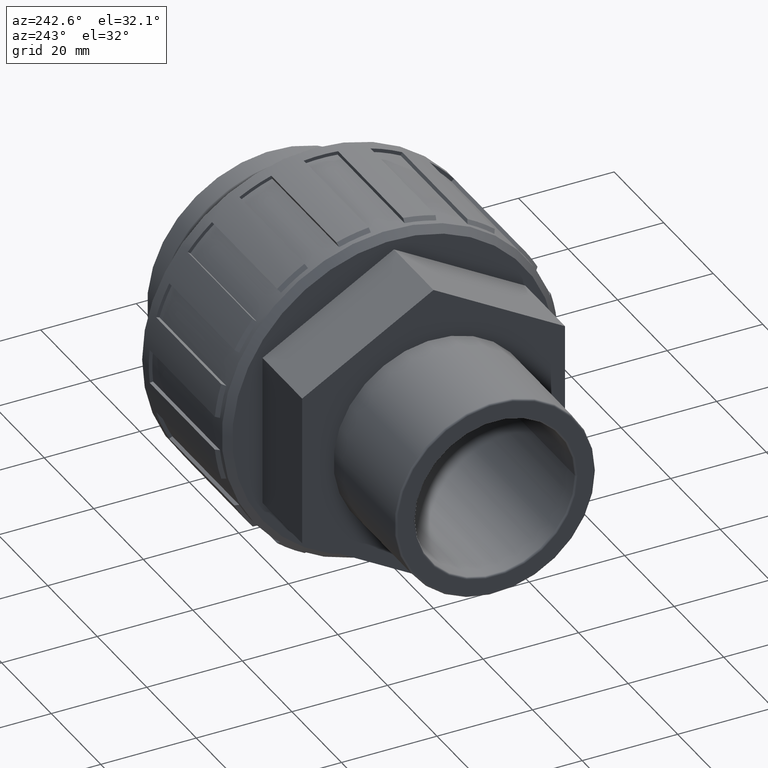
[diagram: clean part render]
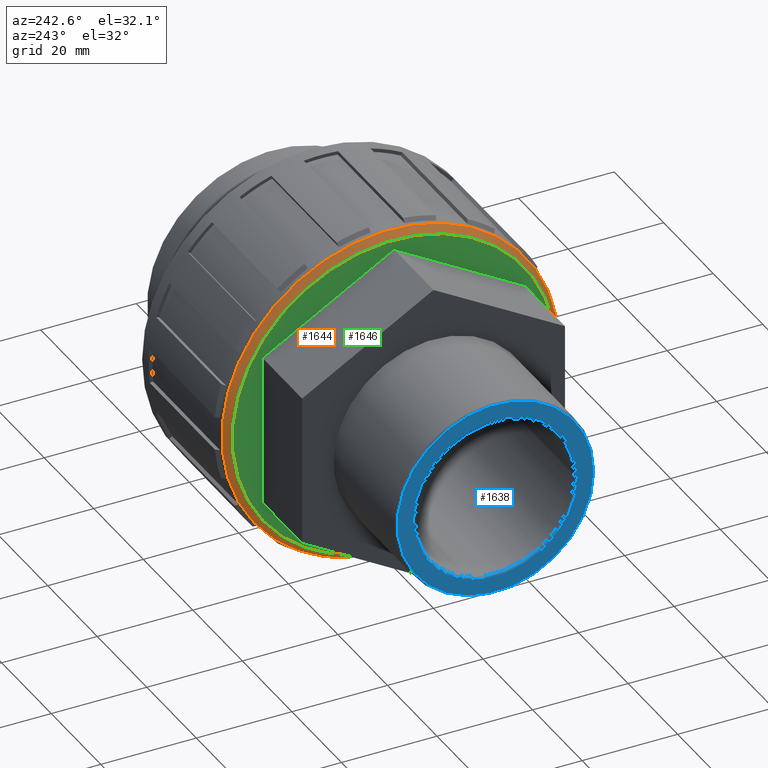
[diagram: same view with three faces highlighted in distinct colors, each labeled with its STEP entity id]
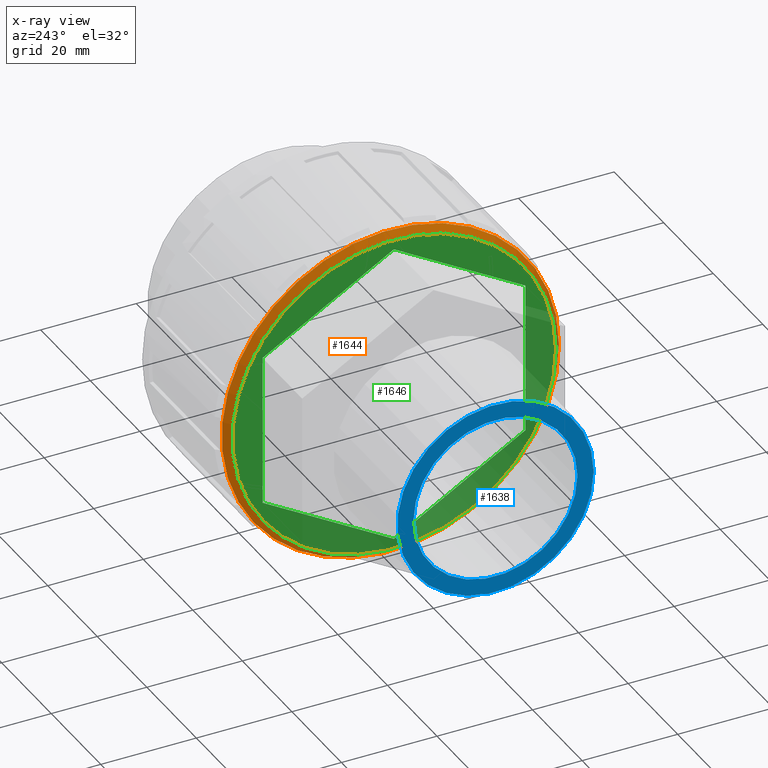
[diagram: x-ray of the same camera — body ghosted, the three highlighted faces saturated]
A machine part, auxiliary view with three faces highlighted in distinct colors.
The next image is the same camera in x-ray (body ghosted, the three faces saturated) — at least one of them is partly hidden behind the body in this view.
Their STEP definitions:

[orange] entity #1644 — the highlighted conical surface has half-angle 45 deg.
#36=CONICAL_SURFACE('',#1816,34.56,45.0000000000002);
#50=FACE_BOUND('',#340,.T.);
#145=CIRCLE('',#1817,35.28);
#146=CIRCLE('',#1818,33.84);
#234=FACE_OUTER_BOUND('',#339,.T.);
#339=EDGE_LOOP('',(#1408));
#340=EDGE_LOOP('',(#1409));
#803=VERTEX_POINT('',#2794);
#804=VERTEX_POINT('',#2796);
#1033=EDGE_CURVE('',#803,#803,#145,.T.);
#1034=EDGE_CURVE('',#804,#804,#146,.T.);
#1408=ORIENTED_EDGE('',*,*,#1033,.T.);
#1409=ORIENTED_EDGE('',*,*,#1034,.T.);
#1644=ADVANCED_FACE('',(#234,#50),#36,.T.);
#1816=AXIS2_PLACEMENT_3D('',#2793,#2301,#2302);
#1817=AXIS2_PLACEMENT_3D('',#2795,#2303,#2304);
#1818=AXIS2_PLACEMENT_3D('',#2797,#2305,#2306);
#2301=DIRECTION('center_axis',(1.,4.89858719658941E-16,0.));
#2302=DIRECTION('ref_axis',(-5.10252021781607E-16,1.,0.));
#2303=DIRECTION('center_axis',(-1.,-4.89858719658941E-16,0.));
#2304=DIRECTION('ref_axis',(-5.29812944225797E-16,1.,0.));
#2305=DIRECTION('center_axis',(1.,4.89858719658941E-16,0.));
#2306=DIRECTION('ref_axis',(-4.89858719658941E-16,1.,0.));
#2793=CARTESIAN_POINT('Origin',(-3.28000000000001,6.6596292937633E-15,0.));
#2794=CARTESIAN_POINT('',(-2.55999999999999,-35.28,4.32055390739186E-15));
#2795=CARTESIAN_POINT('Origin',(-2.56000000000001,7.01232757191774E-15,
0.));
#2796=CARTESIAN_POINT('',(-3.99999999999999,-33.84,-4.14420476831464E-15));
#2797=CARTESIAN_POINT('Origin',(-4.00000000000001,6.30693101560886E-15,
0.));

[blue] entity #1638 — the highlighted planar face has unit normal (-1, -0, 0).
#46=FACE_BOUND('',#330,.T.);
#138=CIRCLE('',#1803,17.164);
#140=CIRCLE('',#1806,20.555);
#228=FACE_OUTER_BOUND('',#329,.T.);
#329=EDGE_LOOP('',(#1392));
#330=EDGE_LOOP('',(#1393));
#796=VERTEX_POINT('',#2771);
#798=VERTEX_POINT('',#2776);
#1024=EDGE_CURVE('',#796,#796,#138,.T.);
#1026=EDGE_CURVE('',#798,#798,#140,.T.);
#1392=ORIENTED_EDGE('',*,*,#1026,.F.);
#1393=ORIENTED_EDGE('',*,*,#1024,.F.);
#1553=PLANE('',#1805);
#1638=ADVANCED_FACE('',(#228,#46),#1553,.T.);
#1803=AXIS2_PLACEMENT_3D('',#2772,#2273,#2274);
#1805=AXIS2_PLACEMENT_3D('',#2775,#2277,#2278);
#1806=AXIS2_PLACEMENT_3D('',#2777,#2279,#2280);
#2273=DIRECTION('center_axis',(-1.,-4.89858719658941E-16,0.));
#2274=DIRECTION('ref_axis',(-4.89858719658941E-16,1.,6.12323399573677E-17));
#2277=DIRECTION('center_axis',(-1.,-4.89858719658941E-16,0.));
#2278=DIRECTION('ref_axis',(0.,0.,1.));
#2279=DIRECTION('center_axis',(1.,4.89858719658941E-16,0.));
#2280=DIRECTION('ref_axis',(-4.89858719658941E-16,1.,6.12323399573677E-17));
#2771=CARTESIAN_POINT('',(-45.,-17.164,1.05099188302826E-15));
#2772=CARTESIAN_POINT('Origin',(-45.,-1.37772764904077E-14,0.));
#2775=CARTESIAN_POINT('Origin',(-45.,-16.764,0.));
#2776=CARTESIAN_POINT('',(-45.,-20.555,-3.77589224347108E-15));
#2777=CARTESIAN_POINT('Origin',(-45.,-1.37772764904077E-14,0.));

[green] entity #1646 — the highlighted planar face has unit normal (-1, -0, 0).
#52=FACE_BOUND('',#344,.T.);
#146=CIRCLE('',#1818,33.84);
#236=FACE_OUTER_BOUND('',#343,.T.);
#343=EDGE_LOOP('',(#1475));
#344=EDGE_LOOP('',(#1476,#1477,#1478,#1479,#1480,#1481));
#357=LINE('',#2335,#503);
#361=LINE('',#2343,#507);
#364=LINE('',#2350,#510);
#368=LINE('',#2358,#514);
#371=LINE('',#2363,#517);
#373=LINE('',#2366,#519);
#503=VECTOR('',#1835,31.7542648054294);
#507=VECTOR('',#1841,31.7542648054294);
#510=VECTOR('',#1846,31.7542648054294);
#514=VECTOR('',#1852,31.7542648054294);
#517=VECTOR('',#1857,31.7542648054294);
#519=VECTOR('',#1861,31.7542648054294);
#649=VERTEX_POINT('',#2333);
#650=VERTEX_POINT('',#2334);
#653=VERTEX_POINT('',#2342);
#655=VERTEX_POINT('',#2348);
#656=VERTEX_POINT('',#2349);
#659=VERTEX_POINT('',#2357);
#804=VERTEX_POINT('',#2796);
#809=EDGE_CURVE('',#649,#650,#357,.T.);
#813=EDGE_CURVE('',#653,#649,#361,.T.);
#816=EDGE_CURVE('',#655,#656,#364,.T.);
#820=EDGE_CURVE('',#659,#655,#368,.T.);
#823=EDGE_CURVE('',#650,#659,#371,.T.);
#825=EDGE_CURVE('',#656,#653,#373,.T.);
#1034=EDGE_CURVE('',#804,#804,#146,.T.);
#1475=ORIENTED_EDGE('',*,*,#1034,.F.);
#1476=ORIENTED_EDGE('',*,*,#813,.T.);
#1477=ORIENTED_EDGE('',*,*,#809,.T.);
#1478=ORIENTED_EDGE('',*,*,#823,.T.);
#1479=ORIENTED_EDGE('',*,*,#820,.T.);
#1480=ORIENTED_EDGE('',*,*,#816,.T.);
#1481=ORIENTED_EDGE('',*,*,#825,.T.);
#1556=PLANE('',#1820);
#1646=ADVANCED_FACE('',(#236,#52),#1556,.T.);
#1818=AXIS2_PLACEMENT_3D('',#2797,#2305,#2306);
#1820=AXIS2_PLACEMENT_3D('',#2799,#2309,#2310);
#1835=DIRECTION('',(4.24230095489963E-16,-0.866025403784439,-0.499999999999999));
#1841=DIRECTION('',(4.24230095489962E-16,-0.866025403784438,0.500000000000001));
#1846=DIRECTION('',(-4.24230095489963E-16,0.86602540378444,0.499999999999998));
#1852=DIRECTION('',(-4.24230095489962E-16,0.866025403784438,-0.500000000000002));
#1857=DIRECTION('',(7.53584031603017E-31,-1.53837014910685E-15,-1.));
#1861=DIRECTION('',(-7.53584031603016E-31,1.53837014910685E-15,1.));
#2305=DIRECTION('center_axis',(1.,4.89858719658941E-16,0.));
#2306=DIRECTION('ref_axis',(-4.89858719658941E-16,1.,0.));
#2309=DIRECTION('center_axis',(-1.,-4.89858719658941E-16,0.));
#2310=DIRECTION('ref_axis',(0.,0.,1.));
#2333=CARTESIAN_POINT('',(-4.00000000000001,5.02550303725737E-14,31.7542648054294));
#2334=CARTESIAN_POINT('',(-4.,-27.5,15.8771324027148));
#2335=CARTESIAN_POINT('',(-4.,-17.1875,21.8310570537328));
#2342=CARTESIAN_POINT('',(-4.00000000000002,27.5,15.8771324027147));
#2343=CARTESIAN_POINT('',(-4.00000000000002,10.3125000000001,25.8003401544114));
#2348=CARTESIAN_POINT('',(-4.00000000000001,-5.06581773385973E-14,-31.7542648054294));
#2349=CARTESIAN_POINT('',(-4.00000000000002,27.5,-15.8771324027148));
#2350=CARTESIAN_POINT('',(-4.00000000000001,-3.43750000000006,-33.7389063557688));
#2357=CARTESIAN_POINT('',(-4.,-27.5,-15.8771324027147));
#2358=CARTESIAN_POINT('',(-3.99999999999999,-30.9375,-13.8924908523753));
#2363=CARTESIAN_POINT('',(-4.,-27.5,7.93856620135738));
#2366=CARTESIAN_POINT('',(-4.00000000000002,27.5,-6.45096395929415E-14));
#2796=CARTESIAN_POINT('',(-3.99999999999999,-33.84,-4.14420476831464E-15));
#2797=CARTESIAN_POINT('Origin',(-4.00000000000001,6.30693101560886E-15,
0.));
#2799=CARTESIAN_POINT('Origin',(-4.,-27.5,0.));